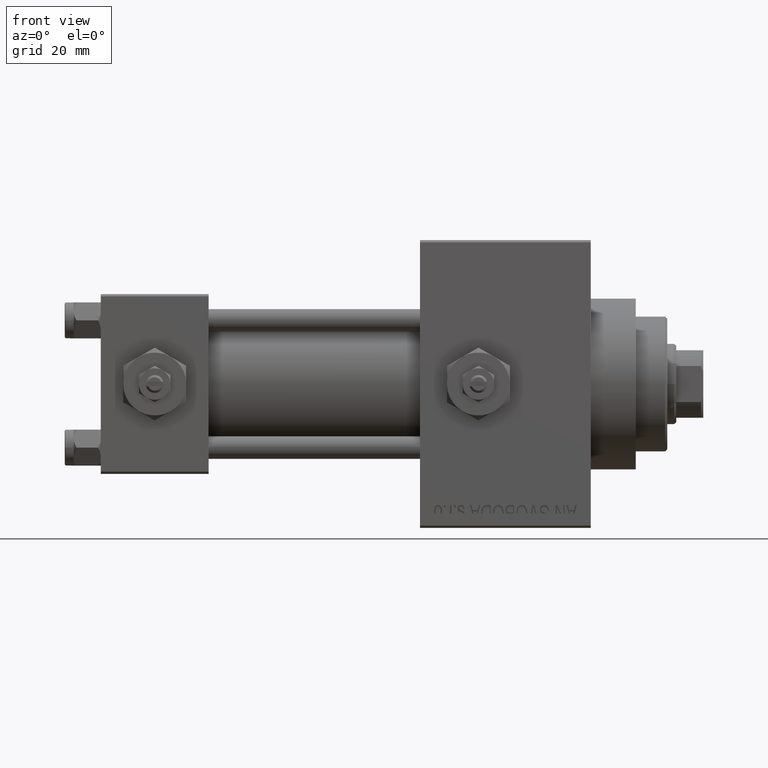
[diagram: clean part render]
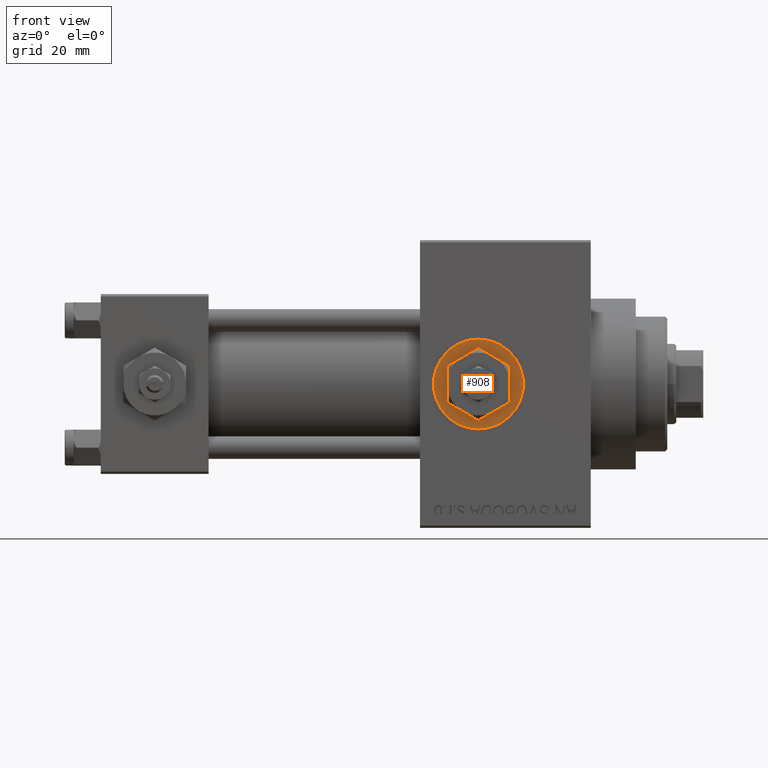
[diagram: same view with one face highlighted and labeled with its STEP entity id]
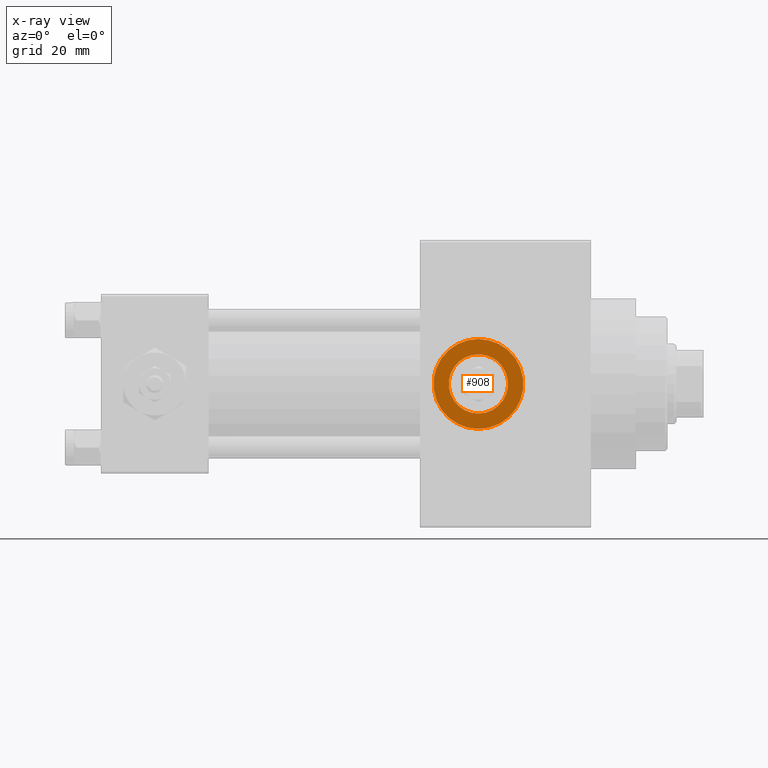
[diagram: x-ray of the same camera — body ghosted, the highlighted face saturated]
A machine part, front view. The second image highlights one B-rep face of the part: STEP entity #908.
The next image is the same camera in x-ray: the body ghosted, the highlighted face saturated — about 0% of this face is hidden behind the body in this view.
In plain terms, the highlighted planar face has unit normal (0, -1, -0).
Its self-contained STEP definition (entity closure, byte-faithful):
#481 = CARTESIAN_POINT ( 'NONE',  ( 84.00000000000000000, -19.80000000000000071, 1.734723475976807403E-17 ) ) ;
#908 = ADVANCED_FACE ( 'NONE', ( #7927, #19340 ), #34442, .T. ) ;
#1194 = VERTEX_POINT ( 'NONE', #45287 ) ;
#4360 = DIRECTION ( 'NONE',  ( 0.000000000000000000, 0.000000000000000000, -1.000000000000000000 ) ) ;
#4451 = DIRECTION ( 'NONE',  ( 0.000000000000000000, 8.673617379884036705E-17, -1.000000000000000000 ) ) ;
#4480 = AXIS2_PLACEMENT_3D ( 'NONE', #20469, #31862, #28146 ) ;
#4604 = CARTESIAN_POINT ( 'NONE',  ( 84.00000000000000000, -19.80000000000000071, -1.717376241217039418E-15 ) ) ;
#7927 = FACE_BOUND ( 'NONE', #18374, .T. ) ;
#8008 = EDGE_CURVE ( 'NONE', #1194, #13617, #19250, .T. ) ;
#8789 = DIRECTION ( 'NONE',  ( 0.000000000000000000, -1.000000000000000000, -8.673617379884036705E-17 ) ) ;
#12509 = CARTESIAN_POINT ( 'NONE',  ( 84.00000000000000000, -19.80000000000000071, 1.734723475976807403E-17 ) ) ;
#12643 = ORIENTED_EDGE ( 'NONE', *, *, #22492, .F. ) ;
#13167 = CIRCLE ( 'NONE', #4480, 9.999999999999994671 ) ;
#13617 = VERTEX_POINT ( 'NONE', #42110 ) ;
#17103 = EDGE_LOOP ( 'NONE', ( #18817, #45278 ) ) ;
#18374 = EDGE_LOOP ( 'NONE', ( #12643, #37395 ) ) ;
#18480 = DIRECTION ( 'NONE',  ( 0.000000000000000000, -1.000000000000000000, -8.673617379884036705E-17 ) ) ;
#18817 = ORIENTED_EDGE ( 'NONE', *, *, #36144, .T. ) ;
#19250 = CIRCLE ( 'NONE', #44551, 6.580000000000001847 ) ;
#19340 = FACE_OUTER_BOUND ( 'NONE', #17103, .T. ) ;
#20469 = CARTESIAN_POINT ( 'NONE',  ( 84.00000000000000000, -19.80000000000000071, 1.734723475976807403E-17 ) ) ;
#21217 = CIRCLE ( 'NONE', #46532, 9.999999999999994671 ) ;
#22492 = EDGE_CURVE ( 'NONE', #13617, #1194, #48420, .T. ) ;
#25636 = VERTEX_POINT ( 'NONE', #42573 ) ;
#27056 = AXIS2_PLACEMENT_3D ( 'NONE', #4604, #31117, #4360 ) ;
#28146 = DIRECTION ( 'NONE',  ( 0.000000000000000000, 0.000000000000000000, -1.000000000000000000 ) ) ;
#28617 = AXIS2_PLACEMENT_3D ( 'NONE', #481, #42115, #4451 ) ;
#29054 = CARTESIAN_POINT ( 'NONE',  ( 84.00000000000000000, -19.80000000000000071, -9.999999999999994671 ) ) ;
#29772 = VERTEX_POINT ( 'NONE', #29054 ) ;
#31117 = DIRECTION ( 'NONE',  ( 0.000000000000000000, -1.000000000000000000, -8.673617379884036705E-17 ) ) ;
#31345 = DIRECTION ( 'NONE',  ( 0.000000000000000000, 0.000000000000000000, -1.000000000000000000 ) ) ;
#31862 = DIRECTION ( 'NONE',  ( 0.000000000000000000, -1.000000000000000000, -8.673617379884036705E-17 ) ) ;
#34442 = PLANE ( 'NONE',  #28617 ) ;
#36144 = EDGE_CURVE ( 'NONE', #29772, #25636, #13167, .T. ) ;
#37395 = ORIENTED_EDGE ( 'NONE', *, *, #8008, .F. ) ;
#41015 = DIRECTION ( 'NONE',  ( 0.000000000000000000, 0.000000000000000000, -1.000000000000000000 ) ) ;
#42110 = CARTESIAN_POINT ( 'NONE',  ( 84.00000000000000000, -19.80000000000000071, -6.580000000000003624 ) ) ;
#42115 = DIRECTION ( 'NONE',  ( 0.000000000000000000, -1.000000000000000000, -8.673617379884036705E-17 ) ) ;
#42573 = CARTESIAN_POINT ( 'NONE',  ( 84.00000000000000000, -19.80000000000000071, 9.999999999999994671 ) ) ;
#44551 = AXIS2_PLACEMENT_3D ( 'NONE', #48710, #18480, #41015 ) ;
#45278 = ORIENTED_EDGE ( 'NONE', *, *, #47061, .T. ) ;
#45287 = CARTESIAN_POINT ( 'NONE',  ( 84.00000000000000000, -19.80000000000000071, 6.580000000000000071 ) ) ;
#46532 = AXIS2_PLACEMENT_3D ( 'NONE', #12509, #8789, #31345 ) ;
#47061 = EDGE_CURVE ( 'NONE', #25636, #29772, #21217, .T. ) ;
#48420 = CIRCLE ( 'NONE', #27056, 6.580000000000001847 ) ;
#48710 = CARTESIAN_POINT ( 'NONE',  ( 84.00000000000000000, -19.80000000000000071, -1.717376241217039418E-15 ) ) ;